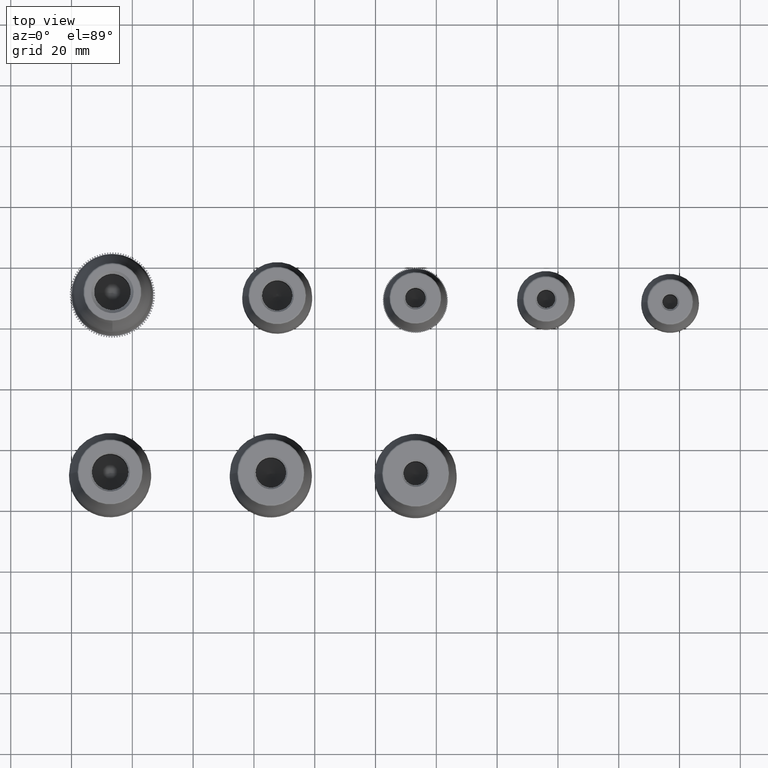
[diagram: clean part render]
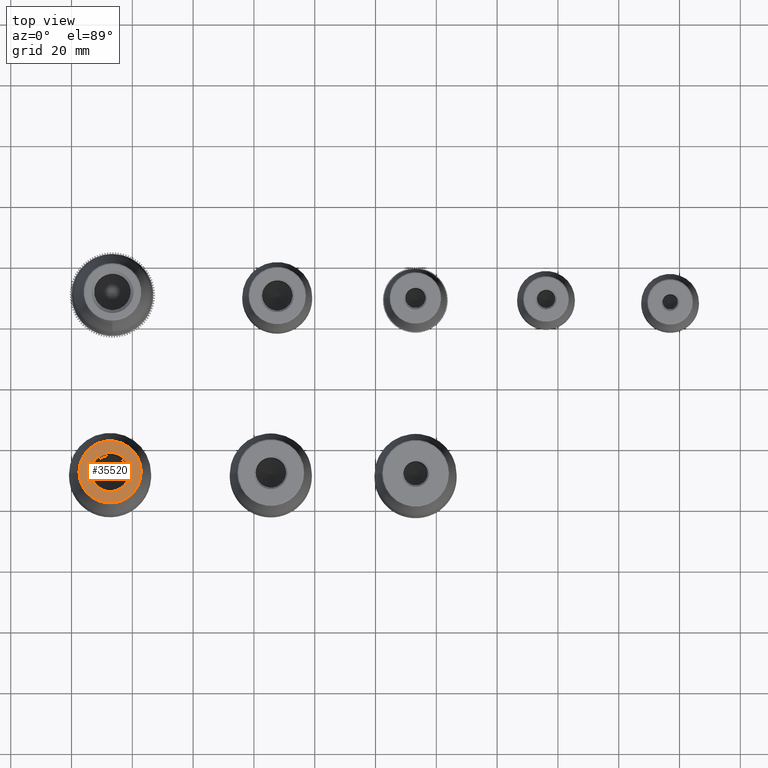
[diagram: same view with one face highlighted and labeled with its STEP entity id]
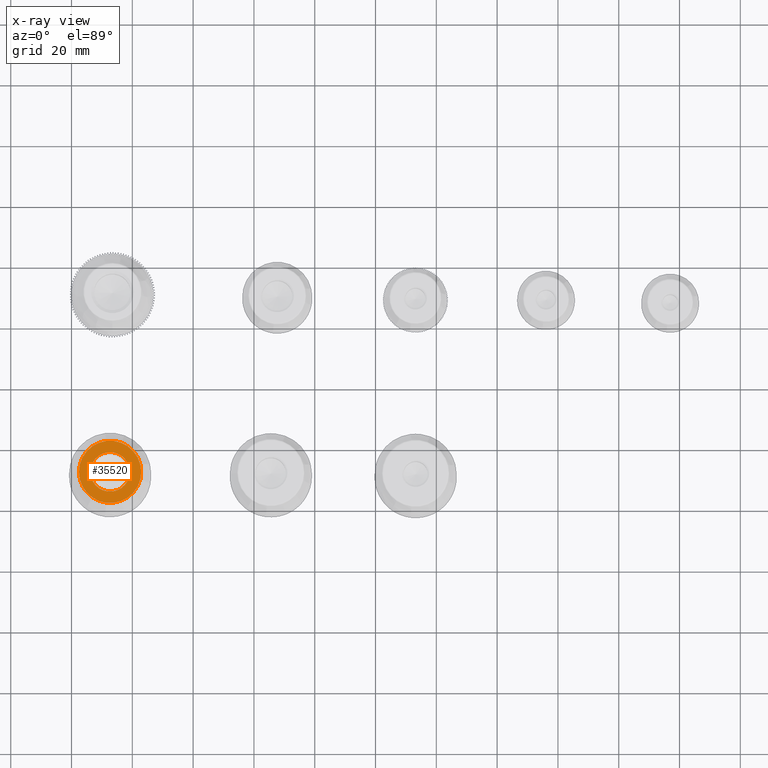
[diagram: x-ray of the same camera — body ghosted, the highlighted face saturated]
A machine part, top view. The second image highlights one B-rep face of the part: STEP entity #35520.
The next image is the same camera in x-ray: the body ghosted, the highlighted face saturated — about 0% of this face is hidden behind the body in this view.
In plain terms, the highlighted planar face has unit normal (0, -0, -1).
Its self-contained STEP definition (entity closure, byte-faithful):
#6416=PLANE('',#39683);
#7470=FACE_BOUND('',#11552,.T.);
#9289=FACE_OUTER_BOUND('',#11551,.T.);
#11551=EDGE_LOOP('',(#32239));
#11552=EDGE_LOOP('',(#32240));
#13911=CIRCLE('',#39680,6.5);
#13913=CIRCLE('',#39684,10.2337764969597);
#17249=VERTEX_POINT('',#66139);
#17251=VERTEX_POINT('',#66145);
#22298=EDGE_CURVE('',#17249,#17249,#13911,.T.);
#22300=EDGE_CURVE('',#17251,#17251,#13913,.T.);
#32239=ORIENTED_EDGE('',*,*,#22300,.F.);
#32240=ORIENTED_EDGE('',*,*,#22298,.F.);
#35520=ADVANCED_FACE('',(#9289,#7470),#6416,.F.);
#39680=AXIS2_PLACEMENT_3D('',#66140,#50168,#50169);
#39683=AXIS2_PLACEMENT_3D('',#66144,#50174,#50175);
#39684=AXIS2_PLACEMENT_3D('',#66146,#50176,#50177);
#50168=DIRECTION('center_axis',(0.,0.,1.));
#50169=DIRECTION('ref_axis',(-1.,0.,0.));
#50174=DIRECTION('center_axis',(0.,0.,-1.));
#50175=DIRECTION('ref_axis',(-1.,0.,0.));
#50176=DIRECTION('center_axis',(0.,0.,-1.));
#50177=DIRECTION('ref_axis',(1.,1.22464679914735E-16,0.));
#66139=CARTESIAN_POINT('',(6.5,7.9602041944578E-16,0.));
#66140=CARTESIAN_POINT('Origin',(0.,0.,0.));
#66144=CARTESIAN_POINT('Origin',(0.,0.,0.));
#66145=CARTESIAN_POINT('',(-10.2337764969597,0.,0.));
#66146=CARTESIAN_POINT('Origin',(0.,0.,0.));